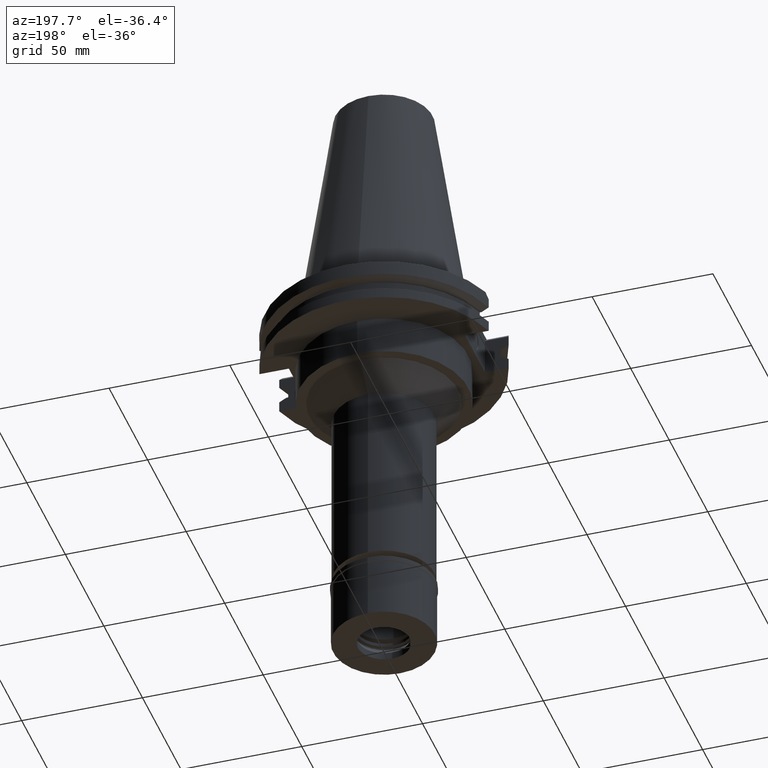
[diagram: clean part render]
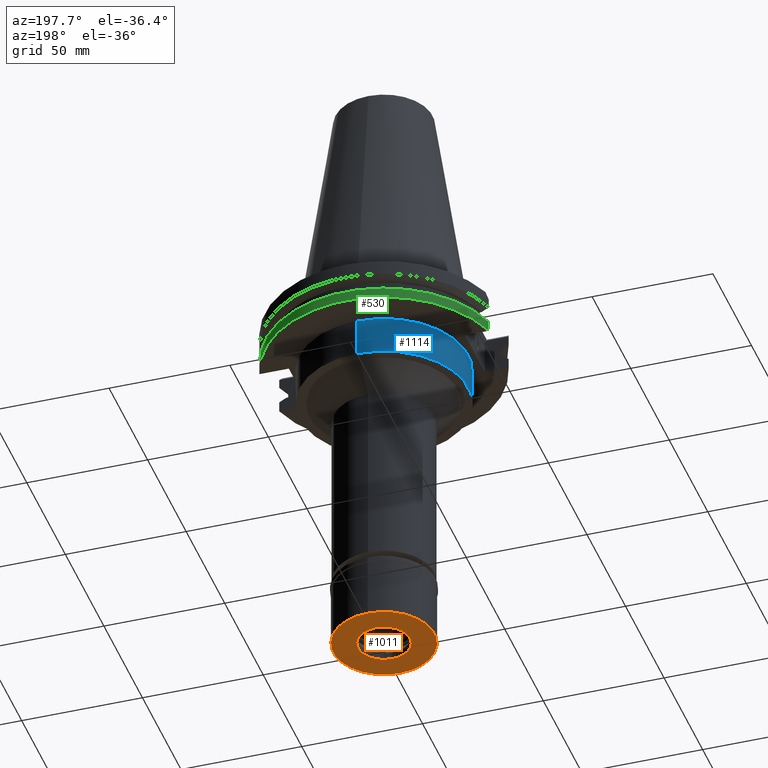
[diagram: same view with three faces highlighted in distinct colors, each labeled with its STEP entity id]
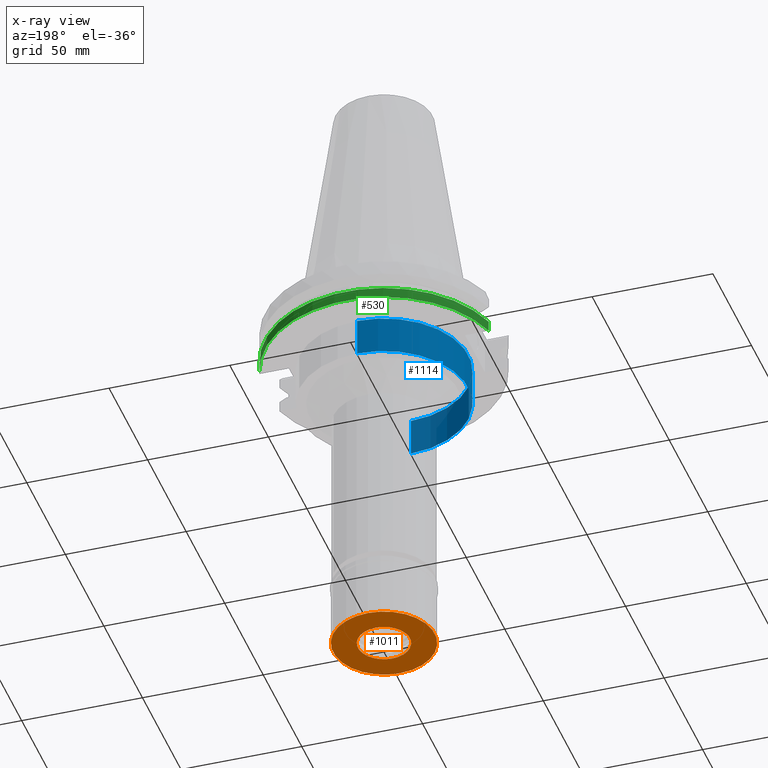
[diagram: x-ray of the same camera — body ghosted, the three highlighted faces saturated]
A machine part, auxiliary view with three faces highlighted in distinct colors.
The next image is the same camera in x-ray (body ghosted, the three faces saturated) — at least one of them is partly hidden behind the body in this view.
Their STEP definitions:

[orange] entity #1011 — the highlighted planar face has unit normal (0, 0, -1).
#36 = DIRECTION ( 'NONE',  ( 0.0000000000000000000, 0.0000000000000000000, 1.000000000000000000 ) ) ;
#73 = CARTESIAN_POINT ( 'NONE',  ( 0.0000000000000000000, 0.0000000000000000000, -27.09999999999999787 ) ) ;
#111 = VERTEX_POINT ( 'NONE', #2670 ) ;
#134 = EDGE_CURVE ( 'NONE', #111, #1933, #529, .T. ) ;
#196 = ORIENTED_EDGE ( 'NONE', *, *, #134, .F. ) ;
#258 = EDGE_LOOP ( 'NONE', ( #196, #2259 ) ) ;
#287 = DIRECTION ( 'NONE',  ( 0.0000000000000000000, 0.0000000000000000000, -1.000000000000000000 ) ) ;
#399 = DIRECTION ( 'NONE',  ( 0.0000000000000000000, 0.0000000000000000000, 1.000000000000000000 ) ) ;
#424 = EDGE_CURVE ( 'NONE', #1976, #1925, #889, .T. ) ;
#468 = EDGE_CURVE ( 'NONE', #1933, #111, #2415, .T. ) ;
#527 = FACE_BOUND ( 'NONE', #1867, .T. ) ;
#529 = CIRCLE ( 'NONE', #1759, 21.00000000000000000 ) ;
#776 = CARTESIAN_POINT ( 'NONE',  ( 0.0000000000000000000, 0.0000000000000000000, -27.09999999999999787 ) ) ;
#790 = DIRECTION ( 'NONE',  ( 0.0000000000000000000, -1.000000000000000000, 0.0000000000000000000 ) ) ;
#889 = CIRCLE ( 'NONE', #1505, 10.75000000000000000 ) ;
#932 = CIRCLE ( 'NONE', #1376, 10.75000000000000000 ) ;
#1011 = ADVANCED_FACE ( 'NONE', ( #1240, #527 ), #1273, .T. ) ;
#1240 = FACE_OUTER_BOUND ( 'NONE', #258, .T. ) ;
#1273 = PLANE ( 'NONE',  #2750 ) ;
#1376 = AXIS2_PLACEMENT_3D ( 'NONE', #1584, #287, #2048 ) ;
#1416 = DIRECTION ( 'NONE',  ( 0.0000000000000000000, -1.000000000000000000, 0.0000000000000000000 ) ) ;
#1505 = AXIS2_PLACEMENT_3D ( 'NONE', #776, #2001, #2840 ) ;
#1543 = EDGE_CURVE ( 'NONE', #1925, #1976, #932, .T. ) ;
#1561 = ORIENTED_EDGE ( 'NONE', *, *, #424, .F. ) ;
#1584 = CARTESIAN_POINT ( 'NONE',  ( 0.0000000000000000000, 0.0000000000000000000, -27.09999999999999787 ) ) ;
#1589 = CARTESIAN_POINT ( 'NONE',  ( 0.0000000000000000000, 0.0000000000000000000, -27.09999999999999787 ) ) ;
#1759 = AXIS2_PLACEMENT_3D ( 'NONE', #1589, #36, #1900 ) ;
#1867 = EDGE_LOOP ( 'NONE', ( #2487, #1561 ) ) ;
#1900 = DIRECTION ( 'NONE',  ( 0.0000000000000000000, 1.000000000000000000, 0.0000000000000000000 ) ) ;
#1925 = VERTEX_POINT ( 'NONE', #1986 ) ;
#1933 = VERTEX_POINT ( 'NONE', #3255 ) ;
#1976 = VERTEX_POINT ( 'NONE', #2543 ) ;
#1986 = CARTESIAN_POINT ( 'NONE',  ( 0.0000000000000000000, 10.75000000000000000, -27.09999999999999787 ) ) ;
#2001 = DIRECTION ( 'NONE',  ( 0.0000000000000000000, 0.0000000000000000000, -1.000000000000000000 ) ) ;
#2048 = DIRECTION ( 'NONE',  ( 0.0000000000000000000, 1.000000000000000000, 0.0000000000000000000 ) ) ;
#2259 = ORIENTED_EDGE ( 'NONE', *, *, #468, .F. ) ;
#2415 = CIRCLE ( 'NONE', #2899, 21.00000000000000000 ) ;
#2487 = ORIENTED_EDGE ( 'NONE', *, *, #1543, .F. ) ;
#2543 = CARTESIAN_POINT ( 'NONE',  ( 0.0000000000000000000, -10.75000000000000000, -27.09999999999999787 ) ) ;
#2670 = CARTESIAN_POINT ( 'NONE',  ( 0.0000000000000000000, 21.00000000000000000, -27.09999999999999787 ) ) ;
#2750 = AXIS2_PLACEMENT_3D ( 'NONE', #3047, #2824, #790 ) ;
#2824 = DIRECTION ( 'NONE',  ( 0.0000000000000000000, 0.0000000000000000000, -1.000000000000000000 ) ) ;
#2840 = DIRECTION ( 'NONE',  ( 0.0000000000000000000, -1.000000000000000000, 0.0000000000000000000 ) ) ;
#2899 = AXIS2_PLACEMENT_3D ( 'NONE', #73, #399, #1416 ) ;
#3047 = CARTESIAN_POINT ( 'NONE',  ( 0.0000000000000000000, 0.0000000000000000000, -27.09999999999999787 ) ) ;
#3255 = CARTESIAN_POINT ( 'NONE',  ( 0.0000000000000000000, -21.00000000000000000, -27.09999999999999787 ) ) ;

[blue] entity #1114 — the highlighted cylindrical surface (partial cylindrical patch) has radius 34.925 mm, axis along (0, 0, -1).
#56 = DIRECTION ( 'NONE',  ( 0.0000000000000000000, 0.0000000000000000000, -1.000000000000000000 ) ) ;
#59 = EDGE_CURVE ( 'NONE', #3099, #2638, #2922, .T. ) ;
#108 = DIRECTION ( 'NONE',  ( 0.0000000000000000000, 1.000000000000000000, 0.0000000000000000000 ) ) ;
#293 = DIRECTION ( 'NONE',  ( 0.0000000000000000000, 0.0000000000000000000, -1.000000000000000000 ) ) ;
#315 = VECTOR ( 'NONE', #56, 1000.000000000000000 ) ;
#353 = CARTESIAN_POINT ( 'NONE',  ( 0.0000000000000000000, 2.617682533176999626E-14, -35.00000000000000000 ) ) ;
#365 = CARTESIAN_POINT ( 'NONE',  ( 0.0000000000000000000, -34.92499999999999716, -19.05000000000000071 ) ) ;
#510 = CARTESIAN_POINT ( 'NONE',  ( 0.0000000000000000000, 34.92499999999999716, -19.05000000000000071 ) ) ;
#939 = CARTESIAN_POINT ( 'NONE',  ( 0.0000000000000000000, -34.92499999999999716, -19.05000000000000071 ) ) ;
#1012 = CARTESIAN_POINT ( 'NONE',  ( 0.0000000000000000000, 2.617682533176999626E-14, -19.05000000000000071 ) ) ;
#1019 = CARTESIAN_POINT ( 'NONE',  ( 0.0000000000000000000, 34.92499999999999716, -35.00000000000000000 ) ) ;
#1083 = ORIENTED_EDGE ( 'NONE', *, *, #59, .T. ) ;
#1105 = DIRECTION ( 'NONE',  ( 0.0000000000000000000, 0.0000000000000000000, 1.000000000000000000 ) ) ;
#1114 = ADVANCED_FACE ( 'NONE', ( #2054 ), #1524, .T. ) ;
#1168 = CIRCLE ( 'NONE', #2529, 34.92499999999999716 ) ;
#1342 = CARTESIAN_POINT ( 'NONE',  ( 0.0000000000000000000, -34.92499999999999716, -35.00000000000000000 ) ) ;
#1366 = AXIS2_PLACEMENT_3D ( 'NONE', #2073, #293, #3070 ) ;
#1481 = LINE ( 'NONE', #939, #1611 ) ;
#1524 = CYLINDRICAL_SURFACE ( 'NONE', #1366, 34.92499999999999716 ) ;
#1540 = EDGE_CURVE ( 'NONE', #2856, #3099, #1548, .T. ) ;
#1548 = CIRCLE ( 'NONE', #2408, 34.92499999999999716 ) ;
#1611 = VECTOR ( 'NONE', #3026, 1000.000000000000000 ) ;
#1804 = ORIENTED_EDGE ( 'NONE', *, *, #2884, .T. ) ;
#2026 = ORIENTED_EDGE ( 'NONE', *, *, #1540, .T. ) ;
#2054 = FACE_OUTER_BOUND ( 'NONE', #3188, .T. ) ;
#2073 = CARTESIAN_POINT ( 'NONE',  ( 0.0000000000000000000, 2.617682533176999626E-14, 113.7500000000000000 ) ) ;
#2118 = DIRECTION ( 'NONE',  ( 0.0000000000000000000, -1.000000000000000000, 0.0000000000000000000 ) ) ;
#2408 = AXIS2_PLACEMENT_3D ( 'NONE', #1012, #3093, #2118 ) ;
#2437 = ORIENTED_EDGE ( 'NONE', *, *, #2996, .F. ) ;
#2529 = AXIS2_PLACEMENT_3D ( 'NONE', #353, #1105, #108 ) ;
#2638 = VERTEX_POINT ( 'NONE', #1019 ) ;
#2856 = VERTEX_POINT ( 'NONE', #365 ) ;
#2884 = EDGE_CURVE ( 'NONE', #2638, #3266, #1168, .T. ) ;
#2922 = LINE ( 'NONE', #3152, #315 ) ;
#2996 = EDGE_CURVE ( 'NONE', #2856, #3266, #1481, .T. ) ;
#3026 = DIRECTION ( 'NONE',  ( 0.0000000000000000000, 0.0000000000000000000, -1.000000000000000000 ) ) ;
#3070 = DIRECTION ( 'NONE',  ( 0.0000000000000000000, -1.000000000000000000, 0.0000000000000000000 ) ) ;
#3093 = DIRECTION ( 'NONE',  ( 0.0000000000000000000, 0.0000000000000000000, -1.000000000000000000 ) ) ;
#3099 = VERTEX_POINT ( 'NONE', #510 ) ;
#3152 = CARTESIAN_POINT ( 'NONE',  ( 0.0000000000000000000, 34.92499999999999716, -19.05000000000000071 ) ) ;
#3188 = EDGE_LOOP ( 'NONE', ( #1804, #2437, #2026, #1083 ) ) ;
#3266 = VERTEX_POINT ( 'NONE', #1342 ) ;

[green] entity #530 — the highlighted cylindrical surface (partial cylindrical patch) has radius 49.2125 mm, axis along (0, 0, -1).
#24 = CARTESIAN_POINT ( 'NONE',  ( -47.47671146204000081, 12.95500000000000007, -14.65366676908000088 ) ) ;
#61 = DIRECTION ( 'NONE',  ( 0.0000000000000000000, 1.000000000000000000, 0.0000000000000000000 ) ) ;
#174 = LINE ( 'NONE', #2241, #3051 ) ;
#193 = ORIENTED_EDGE ( 'NONE', *, *, #349, .F. ) ;
#295 = EDGE_CURVE ( 'NONE', #609, #2145, #174, .T. ) ;
#317 = CARTESIAN_POINT ( 'NONE',  ( 0.0000000000000000000, 2.617682533176999626E-14, -19.05000000000000071 ) ) ;
#349 = EDGE_CURVE ( 'NONE', #573, #2057, #3066, .T. ) ;
#530 = ADVANCED_FACE ( 'NONE', ( #2860 ), #1797, .T. ) ;
#534 = CARTESIAN_POINT ( 'NONE',  ( 0.0000000000000000000, 2.617682533176999626E-14, 113.7500000000000000 ) ) ;
#564 = DIRECTION ( 'NONE',  ( 0.0000000000000000000, 0.0000000000000000000, -1.000000000000000000 ) ) ;
#573 = VERTEX_POINT ( 'NONE', #24 ) ;
#609 = VERTEX_POINT ( 'NONE', #1847 ) ;
#792 = EDGE_CURVE ( 'NONE', #609, #2057, #2035, .T. ) ;
#843 = AXIS2_PLACEMENT_3D ( 'NONE', #534, #564, #1262 ) ;
#917 = ORIENTED_EDGE ( 'NONE', *, *, #1133, .T. ) ;
#926 = DIRECTION ( 'NONE',  ( 1.341459893287999999E-13, 4.848650216702999599E-14, 1.000000000000000000 ) ) ;
#1031 = DIRECTION ( 'NONE',  ( 1.212162554176000032E-13, -4.808244798230000260E-14, -1.000000000000000000 ) ) ;
#1056 = CARTESIAN_POINT ( 'NONE',  ( 47.47671146204000081, 12.95500000000000007, -14.65366676908000088 ) ) ;
#1133 = EDGE_CURVE ( 'NONE', #573, #2145, #2185, .T. ) ;
#1262 = DIRECTION ( 'NONE',  ( 0.0000000000000000000, -1.000000000000000000, 0.0000000000000000000 ) ) ;
#1282 = CARTESIAN_POINT ( 'NONE',  ( -47.47671146204000081, 12.95500000000000007, -19.05000000000000071 ) ) ;
#1332 = DIRECTION ( 'NONE',  ( 0.0000000000000000000, 0.0000000000000000000, 1.000000000000000000 ) ) ;
#1484 = ORIENTED_EDGE ( 'NONE', *, *, #792, .T. ) ;
#1501 = VECTOR ( 'NONE', #1031, 1000.000000000000000 ) ;
#1509 = DIRECTION ( 'NONE',  ( 0.0000000000000000000, 0.0000000000000000000, -1.000000000000000000 ) ) ;
#1722 = AXIS2_PLACEMENT_3D ( 'NONE', #317, #1332, #61 ) ;
#1769 = CARTESIAN_POINT ( 'NONE',  ( -47.47671146204000081, 12.95500000000000007, -14.65366676908000088 ) ) ;
#1797 = CYLINDRICAL_SURFACE ( 'NONE', #843, 49.21249999999999858 ) ;
#1806 = CARTESIAN_POINT ( 'NONE',  ( 0.0000000000000000000, 1.055026073064999954E-14, -14.65366676908000088 ) ) ;
#1847 = CARTESIAN_POINT ( 'NONE',  ( 47.47671146204000081, 12.95500000000000007, -19.05000000000000071 ) ) ;
#2035 = CIRCLE ( 'NONE', #1722, 49.21249999999999858 ) ;
#2057 = VERTEX_POINT ( 'NONE', #1282 ) ;
#2145 = VERTEX_POINT ( 'NONE', #1056 ) ;
#2185 = CIRCLE ( 'NONE', #3040, 49.21250000000001279 ) ;
#2241 = CARTESIAN_POINT ( 'NONE',  ( 47.47671146204000081, 12.95500000000000007, -19.05000000000000071 ) ) ;
#2298 = ORIENTED_EDGE ( 'NONE', *, *, #295, .F. ) ;
#2589 = DIRECTION ( 'NONE',  ( -0.9647287063660957562, 0.2632461264922989486, 0.0000000000000000000 ) ) ;
#2860 = FACE_OUTER_BOUND ( 'NONE', #2869, .T. ) ;
#2869 = EDGE_LOOP ( 'NONE', ( #917, #2298, #1484, #193 ) ) ;
#3040 = AXIS2_PLACEMENT_3D ( 'NONE', #1806, #1509, #2589 ) ;
#3051 = VECTOR ( 'NONE', #926, 1000.000000000000000 ) ;
#3066 = LINE ( 'NONE', #1769, #1501 ) ;